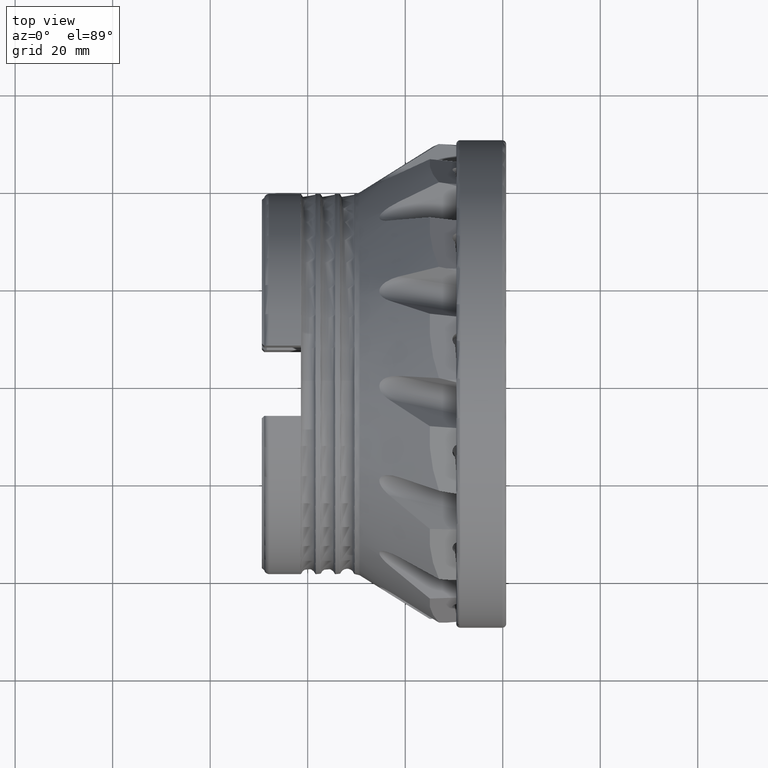
[diagram: clean part render]
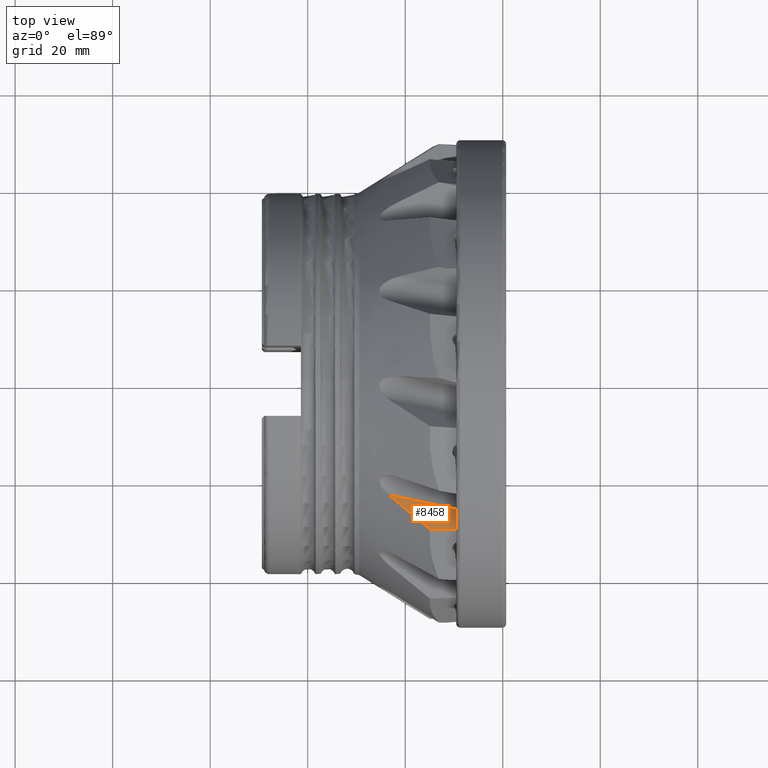
[diagram: same view with one face highlighted and labeled with its STEP entity id]
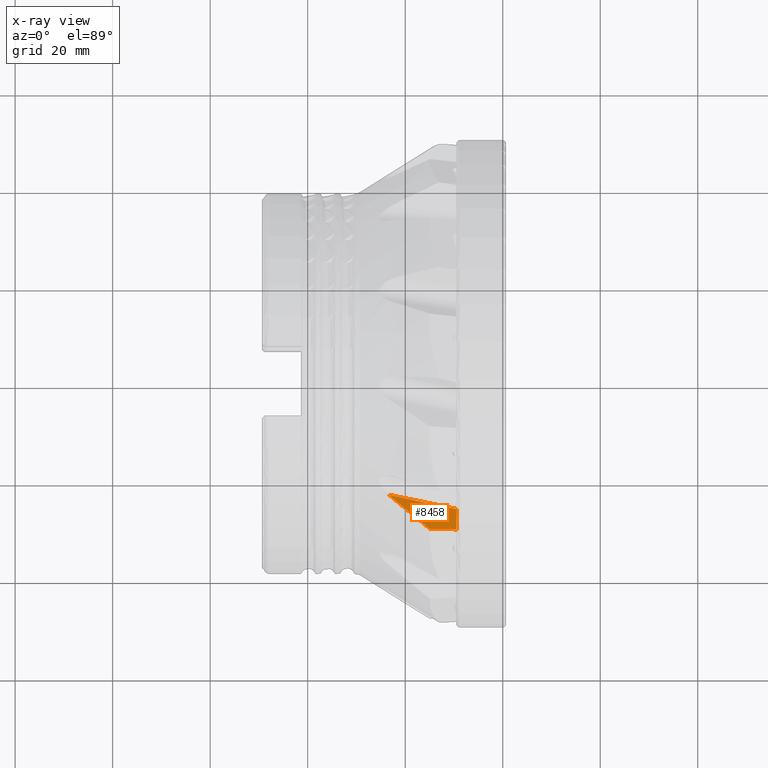
[diagram: x-ray of the same camera — body ghosted, the highlighted face saturated]
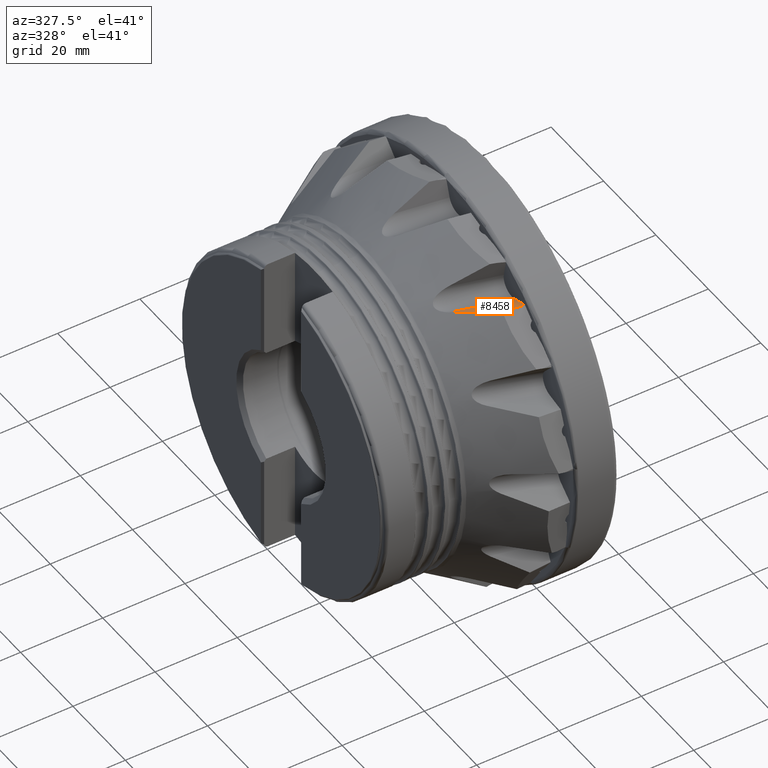
[diagram: same view with one face highlighted and labeled with its STEP entity id]
A machine part, top view. The second image highlights one B-rep face of the part: STEP entity #8458.
The next image is the same camera in x-ray: the body ghosted, the highlighted face saturated — about 0% of this face is hidden behind the body in this view.
A second angle (auxiliary view) of the same face is appended — the face is thin or edge-on in the first view.
In plain terms, the highlighted planar face has unit normal (-0.1144, -0.3226, -0.9396).
Its self-contained STEP definition (entity closure, byte-faithful):
#87 = EDGE_CURVE ( 'NONE', #3048, #10045, #8446, .T. ) ;
#559 = VECTOR ( 'NONE', #1741, 999.9999999999998900 ) ;
#886 = FACE_OUTER_BOUND ( 'NONE', #8663, .T. ) ;
#1042 = CARTESIAN_POINT ( 'NONE',  ( -20.58659316530101100, -25.79704630372319900, 36.62694155997455400 ) ) ;
#1312 = CARTESIAN_POINT ( 'NONE',  ( -9.391456005293882500, -26.28528611028927700, 35.43188114641814200 ) ) ;
#1741 = DIRECTION ( 'NONE',  ( 0.9781476007338083500, -0.2018701549467062100, -0.04975652440119996600 ) ) ;
#1809 = B_SPLINE_CURVE_WITH_KNOTS ( 'NONE', 3,
 ( #1989, #1042, #9002, #3036 ),
 .UNSPECIFIED., .F., .F.,
 ( 4, 4 ),
 ( 0.002496162441869746600, 0.01347685687422569400 ),
 .UNSPECIFIED. ) ;
#1817 = ORIENTED_EDGE ( 'NONE', *, *, #6390, .T. ) ;
#1989 = CARTESIAN_POINT ( 'NONE',  ( -23.32021193226900000, -23.41066870583630400, 36.14041070130225800 ) ) ;
#2460 = B_SPLINE_CURVE_WITH_KNOTS ( 'NONE', 3,
 ( #10884, #3899, #12856, #6892 ),
 .UNSPECIFIED., .F., .F.,
 ( 4, 4 ),
 ( 0.001461245605410251300, 0.005904466927455026500 ),
 .UNSPECIFIED. ) ;
#2825 = CARTESIAN_POINT ( 'NONE',  ( -14.95412993031776100, -30.38833256192599600, 37.51759172593897100 ) ) ;
#3036 = CARTESIAN_POINT ( 'NONE',  ( -14.95412993031776100, -30.38833256192599600, 37.51759172593897100 ) ) ;
#3048 = VERTEX_POINT ( 'NONE', #3129 ) ;
#3079 = PLANE ( 'NONE',  #5921 ) ;
#3129 = CARTESIAN_POINT ( 'NONE',  ( -9.493561608285718400, -30.48280711262503200, 36.88536244808182800 ) ) ;
#3193 = LINE ( 'NONE', #6668, #559 ) ;
#3899 = CARTESIAN_POINT ( 'NONE',  ( -9.424892290393003700, -27.68449524370893000, 35.91631418910735400 ) ) ;
#4060 = DIRECTION ( 'NONE',  ( 0.0000000000000000000, 0.9458143234421081400, -0.3247079696769809600 ) ) ;
#4278 = DIRECTION ( 'NONE',  ( -0.9932173659157969000, 0.01718388249310620600, 0.1149955574174458400 ) ) ;
#5179 = EDGE_CURVE ( 'NONE', #7745, #3048, #2460, .T. ) ;
#5671 = VERTEX_POINT ( 'NONE', #9172 ) ;
#5763 = VECTOR ( 'NONE', #4278, 1000.000000000000100 ) ;
#5921 = AXIS2_PLACEMENT_3D ( 'NONE', #9003, #10032, #4060 ) ;
#6390 = EDGE_CURVE ( 'NONE', #5671, #10045, #1809, .T. ) ;
#6668 = CARTESIAN_POINT ( 'NONE',  ( -31.25991889758152100, -21.77207155125895700, 36.54428862633277900 ) ) ;
#6892 = CARTESIAN_POINT ( 'NONE',  ( -9.493561608285718400, -30.48280711262503200, 36.88536244808182800 ) ) ;
#7467 = ORIENTED_EDGE ( 'NONE', *, *, #87, .F. ) ;
#7745 = VERTEX_POINT ( 'NONE', #1312 ) ;
#8446 = LINE ( 'NONE', #12230, #5763 ) ;
#8458 = ADVANCED_FACE ( 'NONE', ( #886 ), #3079, .F. ) ;
#8507 = ORIENTED_EDGE ( 'NONE', *, *, #5179, .F. ) ;
#8663 = EDGE_LOOP ( 'NONE', ( #8507, #11768, #1817, #7467 ) ) ;
#9002 = CARTESIAN_POINT ( 'NONE',  ( -17.79012310271784600, -28.11439373397906700, 37.08212334434987400 ) ) ;
#9003 = CARTESIAN_POINT ( 'NONE',  ( -31.25991889758152100, -21.77207155125895700, 36.54428862633277900 ) ) ;
#9172 = CARTESIAN_POINT ( 'NONE',  ( -23.32021193226900000, -23.41066870583630400, 36.14041070130225800 ) ) ;
#10032 = DIRECTION ( 'NONE',  ( -0.1143696201586968400, -0.3225773226189382300, -0.9396081422150155400 ) ) ;
#10045 = VERTEX_POINT ( 'NONE', #2825 ) ;
#10884 = CARTESIAN_POINT ( 'NONE',  ( -9.391456005293882500, -26.28528611028927700, 35.43188114641814200 ) ) ;
#11768 = ORIENTED_EDGE ( 'NONE', *, *, #12520, .F. ) ;
#12230 = CARTESIAN_POINT ( 'NONE',  ( 3.564277126467818100, -30.70872378920774900, 35.37351469400479700 ) ) ;
#12520 = EDGE_CURVE ( 'NONE', #5671, #7745, #3193, .T. ) ;
#12856 = CARTESIAN_POINT ( 'NONE',  ( -9.458974316701315400, -29.08366634405862100, 36.40081277462039800 ) ) ;